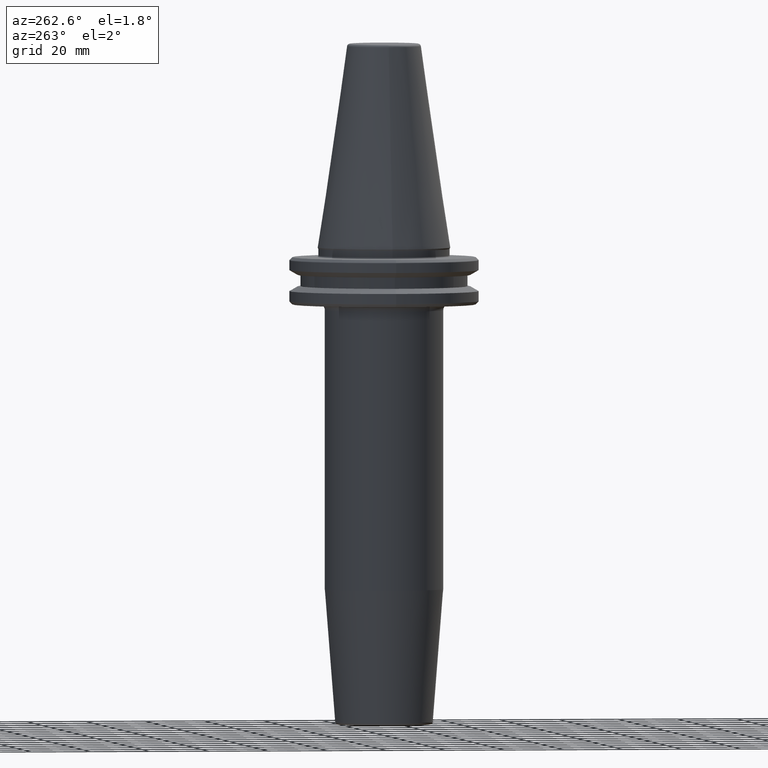
[diagram: clean part render]
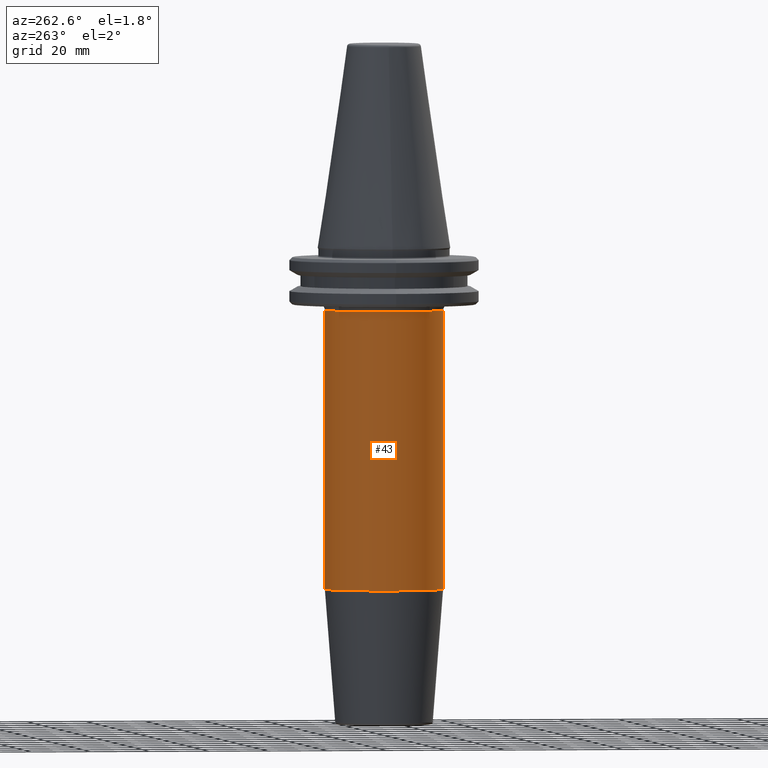
[diagram: same view with one face highlighted and labeled with its STEP entity id]
A machine part, auxiliary view. The second image highlights one B-rep face of the part: STEP entity #43.
In plain terms, the highlighted cylindrical surface (partial cylindrical patch) has radius 20 mm, axis along (-0, 0, -1).
Its self-contained STEP definition (entity closure, byte-faithful):
#39 = CARTESIAN_POINT ( 'NONE',  ( 0.0000000000000000000, 20.00000000000001100, -160.0000000000000000 ) ) ;
#43 = ADVANCED_FACE ( 'NONE', ( #155 ), #627, .T. ) ;
#73 = AXIS2_PLACEMENT_3D ( 'NONE', #406, #614, #809 ) ;
#111 = CARTESIAN_POINT ( 'NONE',  ( 0.0000000000000000000, 19.99999999999999600, -20.98284271247460400 ) ) ;
#155 = FACE_OUTER_BOUND ( 'NONE', #260, .T. ) ;
#159 = CARTESIAN_POINT ( 'NONE',  ( 2.449293598294707700E-015, 20.00000000000000400, -114.6067425191115800 ) ) ;
#191 = EDGE_CURVE ( 'NONE', #1113, #831, #519, .T. ) ;
#260 = EDGE_LOOP ( 'NONE', ( #342, #678, #493, #988 ) ) ;
#282 = CARTESIAN_POINT ( 'NONE',  ( 0.0000000000000000000, -1.701835490922485000E-014, -20.98284271247460700 ) ) ;
#342 = ORIENTED_EDGE ( 'NONE', *, *, #1057, .F. ) ;
#380 = DIRECTION ( 'NONE',  ( 0.0000000000000000000, 1.000000000000000000, 1.734723475976805900E-016 ) ) ;
#384 = EDGE_CURVE ( 'NONE', #831, #808, #801, .T. ) ;
#406 = CARTESIAN_POINT ( 'NONE',  ( 0.0000000000000000000, -5.256097865015172100E-015, -114.6067425191115800 ) ) ;
#450 = DIRECTION ( 'NONE',  ( -0.0000000000000000000, 1.256330602389183300E-016, -1.000000000000000000 ) ) ;
#493 = ORIENTED_EDGE ( 'NONE', *, *, #384, .T. ) ;
#516 = CIRCLE ( 'NONE', #73, 20.00000000000000700 ) ;
#519 = CIRCLE ( 'NONE', #1176, 20.00000000000001400 ) ;
#529 = CARTESIAN_POINT ( 'NONE',  ( 0.0000000000000000000, -20.00000000000001400, -114.6067425191115800 ) ) ;
#537 = VECTOR ( 'NONE', #450, 1000.000000000000000 ) ;
#558 = LINE ( 'NONE', #1151, #1256 ) ;
#614 = DIRECTION ( 'NONE',  ( -0.0000000000000000000, 1.256330602389183300E-016, -1.000000000000000000 ) ) ;
#627 = CYLINDRICAL_SURFACE ( 'NONE', #804, 20.00000000000001100 ) ;
#637 = EDGE_CURVE ( 'NONE', #812, #808, #516, .T. ) ;
#678 = ORIENTED_EDGE ( 'NONE', *, *, #191, .T. ) ;
#702 = DIRECTION ( 'NONE',  ( -0.0000000000000000000, 1.256330602389183300E-016, -1.000000000000000000 ) ) ;
#707 = CARTESIAN_POINT ( 'NONE',  ( 0.0000000000000000000, 4.467959865220142400E-016, -160.0000000000000000 ) ) ;
#801 = LINE ( 'NONE', #39, #537 ) ;
#804 = AXIS2_PLACEMENT_3D ( 'NONE', #707, #1073, #953 ) ;
#808 = VERTEX_POINT ( 'NONE', #159 ) ;
#809 = DIRECTION ( 'NONE',  ( 0.0000000000000000000, 1.000000000000000000, 0.0000000000000000000 ) ) ;
#812 = VERTEX_POINT ( 'NONE', #529 ) ;
#813 = CARTESIAN_POINT ( 'NONE',  ( 2.449293598294709300E-015, -20.00000000000003600, -20.98284271247461100 ) ) ;
#831 = VERTEX_POINT ( 'NONE', #111 ) ;
#953 = DIRECTION ( 'NONE',  ( 0.0000000000000000000, 1.000000000000000000, 0.0000000000000000000 ) ) ;
#969 = DIRECTION ( 'NONE',  ( -0.0000000000000000000, 1.256330602389183300E-016, -1.000000000000000000 ) ) ;
#988 = ORIENTED_EDGE ( 'NONE', *, *, #637, .F. ) ;
#1057 = EDGE_CURVE ( 'NONE', #1113, #812, #558, .T. ) ;
#1073 = DIRECTION ( 'NONE',  ( -0.0000000000000000000, 1.256330602389183300E-016, -1.000000000000000000 ) ) ;
#1113 = VERTEX_POINT ( 'NONE', #813 ) ;
#1151 = CARTESIAN_POINT ( 'NONE',  ( 2.449293598294708100E-015, -20.00000000000001100, -160.0000000000000000 ) ) ;
#1176 = AXIS2_PLACEMENT_3D ( 'NONE', #282, #969, #380 ) ;
#1256 = VECTOR ( 'NONE', #702, 1000.000000000000000 ) ;